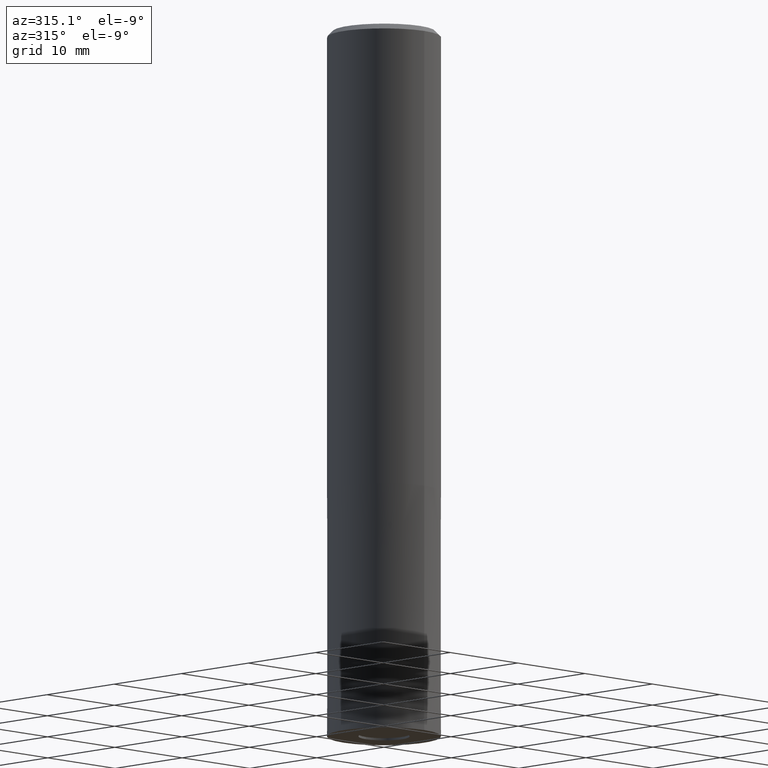
[diagram: clean part render]
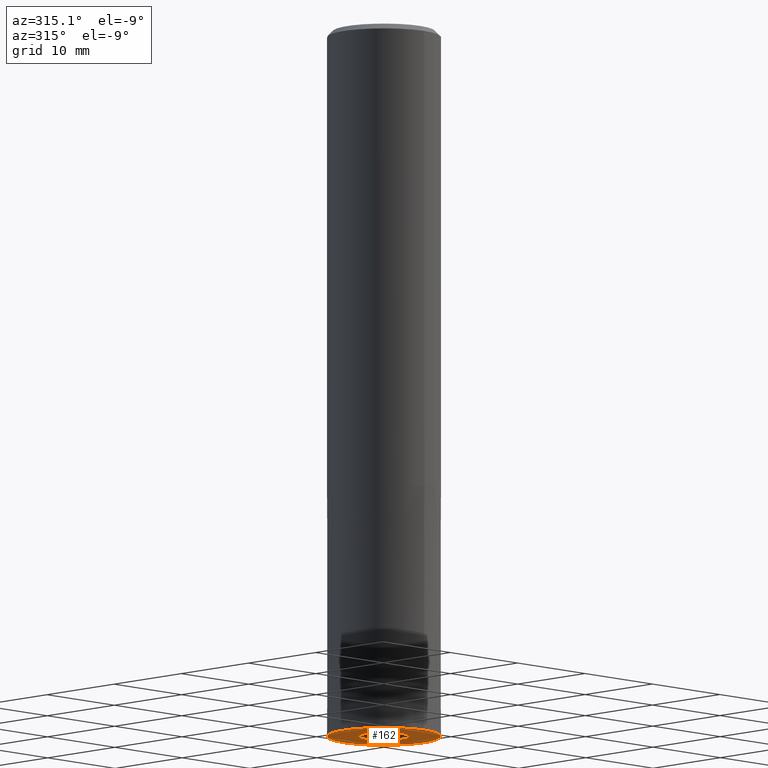
[diagram: same view with one face highlighted and labeled with its STEP entity id]
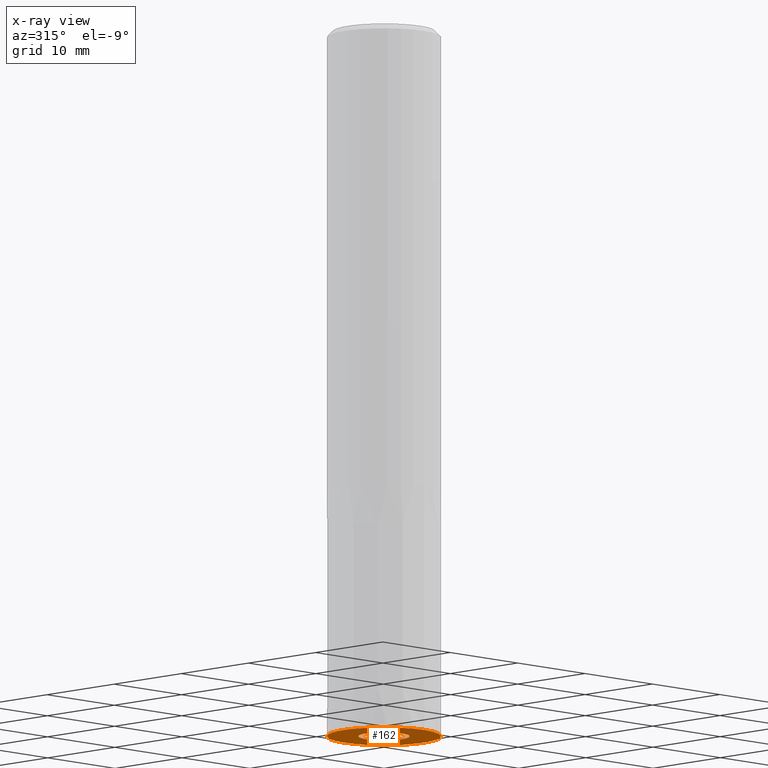
[diagram: x-ray of the same camera — body ghosted, the highlighted face saturated]
A machine part, auxiliary view. The second image highlights one B-rep face of the part: STEP entity #162.
The next image is the same camera in x-ray: the body ghosted, the highlighted face saturated — about 0% of this face is hidden behind the body in this view.
In plain terms, the highlighted planar face has unit normal (0, 0, -1).
Its self-contained STEP definition (entity closure, byte-faithful):
#98=EDGE_CURVE('',#136,#218,#243,.T.);
#134=EDGE_CURVE('',#154,#150,#284,.T.);
#136=VERTEX_POINT('',#286);
#150=VERTEX_POINT('',#302);
#154=VERTEX_POINT('',#306);
#162=ADVANCED_FACE('',(#314,#315),#316,.T.);
#182=EDGE_CURVE('',#218,#136,#338,.T.);
#196=EDGE_CURVE('',#150,#154,#355,.T.);
#218=VERTEX_POINT('',#381);
#243=CIRCLE('',#399,2.7);
#284=CIRCLE('',#458,6.0);
#286=CARTESIAN_POINT('',(0.0,2.7,-75.0));
#302=CARTESIAN_POINT('',(7.34763812293426E-016,-6.0,-75.0));
#306=CARTESIAN_POINT('',(0.0,6.0,-75.0));
#314=FACE_OUTER_BOUND('',#494,.T.);
#315=FACE_BOUND('',#495,.T.);
#316=PLANE('',#496);
#338=CIRCLE('',#519,2.7);
#355=CIRCLE('',#539,6.0);
#381=CARTESIAN_POINT('',(3.30643715532042E-016,-2.7,-75.0));
#399=AXIS2_PLACEMENT_3D('',#576,#577,#578);
#458=AXIS2_PLACEMENT_3D('',#635,#636,#637);
#494=EDGE_LOOP('',(#667,#668));
#495=EDGE_LOOP('',(#669,#670));
#496=AXIS2_PLACEMENT_3D('',#671,#672,#673);
#519=AXIS2_PLACEMENT_3D('',#690,#691,#692);
#539=AXIS2_PLACEMENT_3D('',#718,#719,#720);
#576=CARTESIAN_POINT('',(0.0,0.0,-75.0));
#577=DIRECTION('',(0.0,0.0,-1.0));
#578=DIRECTION('',(0.0,1.0,0.0));
#635=CARTESIAN_POINT('',(0.0,0.0,-75.0));
#636=DIRECTION('',(0.0,0.0,-1.0));
#637=DIRECTION('',(0.0,1.0,0.0));
#667=ORIENTED_EDGE('',*,*,#134,.T.);
#668=ORIENTED_EDGE('',*,*,#196,.T.);
#669=ORIENTED_EDGE('',*,*,#98,.F.);
#670=ORIENTED_EDGE('',*,*,#182,.F.);
#671=CARTESIAN_POINT('',(0.0,4.3475,-75.0));
#672=DIRECTION('',(0.0,0.0,-1.0));
#673=DIRECTION('',(0.0,1.0,0.0));
#690=CARTESIAN_POINT('',(0.0,0.0,-75.0));
#691=DIRECTION('',(0.0,0.0,-1.0));
#692=DIRECTION('',(0.0,1.0,0.0));
#718=CARTESIAN_POINT('',(0.0,0.0,-75.0));
#719=DIRECTION('',(0.0,0.0,-1.0));
#720=DIRECTION('',(0.0,1.0,0.0));